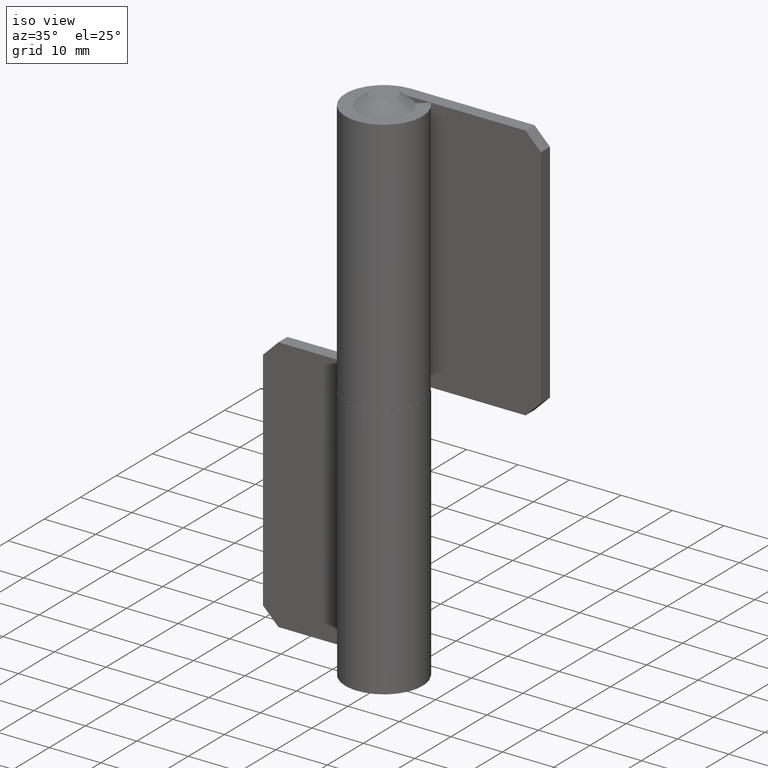
[diagram: clean part render]
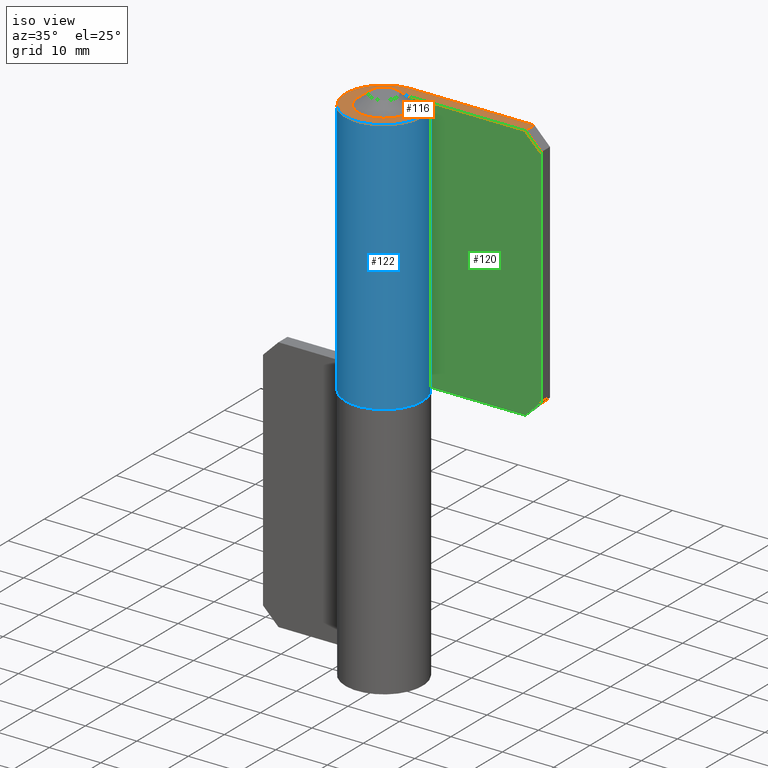
[diagram: same view with three faces highlighted in distinct colors, each labeled with its STEP entity id]
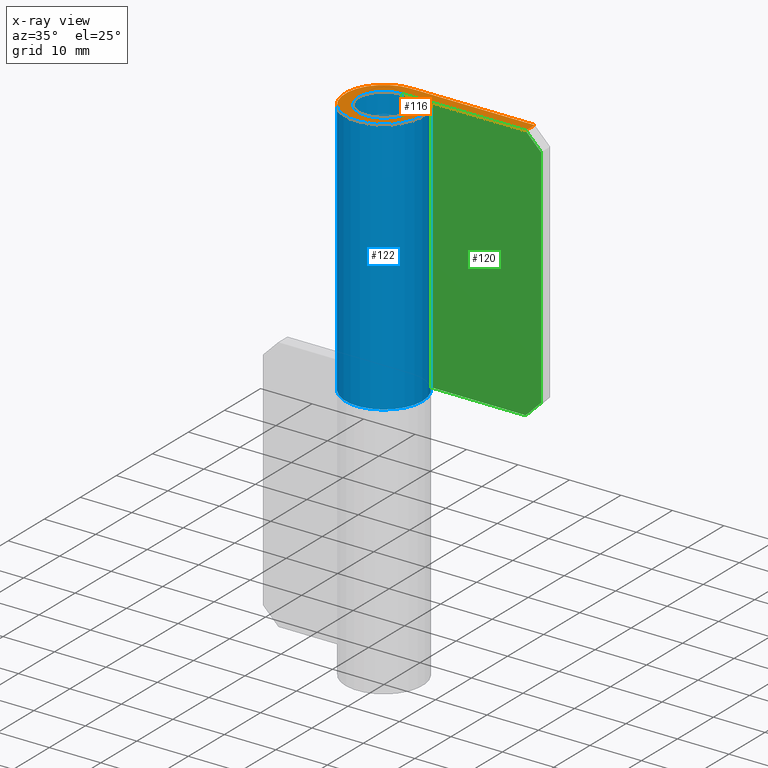
[diagram: x-ray of the same camera — body ghosted, the three highlighted faces saturated]
A machine part, iso view with three faces highlighted in distinct colors.
The next image is the same camera in x-ray (body ghosted, the three faces saturated) — at least one of them is partly hidden behind the body in this view.
Their STEP definitions:

[orange] entity #116 — the highlighted planar face has unit normal (0, 0, 1).
#116=ADVANCED_FACE('',(#180),#179,.T.);
#179=PLANE('',#432);
#180=FACE_OUTER_BOUND('',#433,.T.);
#429=CARTESIAN_POINT('',(-1.29468851000E+001,-1.29731095773E+001,5.00000000000E+001));
#430=DIRECTION('',(0.00000000000E+000,0.00000000000E+000,1.00000000000E+000));
#431=DIRECTION('',(1.00000000000E+000,0.00000000000E+000,-0.00000000000E+000));
#432=AXIS2_PLACEMENT_3D('',#429,#430,#431);
#433=EDGE_LOOP('',(#580,#581,#582,#583,#584,#585,#586,#587));
#580=ORIENTED_EDGE('',*,*,#710,.F.);
#581=ORIENTED_EDGE('',*,*,#699,.T.);
#582=ORIENTED_EDGE('',*,*,#711,.F.);
#583=ORIENTED_EDGE('',*,*,#712,.T.);
#584=ORIENTED_EDGE('',*,*,#713,.F.);
#585=ORIENTED_EDGE('',*,*,#714,.F.);
#586=ORIENTED_EDGE('',*,*,#715,.F.);
#587=ORIENTED_EDGE('',*,*,#716,.F.);
#699=EDGE_CURVE('',#771,#763,#772,.T.);
#710=EDGE_CURVE('',#771,#847,#848,.T.);
#711=EDGE_CURVE('',#854,#763,#855,.T.);
#712=EDGE_CURVE('',#854,#861,#862,.T.);
#713=EDGE_CURVE('',#868,#861,#869,.T.);
#714=EDGE_CURVE('',#875,#868,#876,.T.);
#715=EDGE_CURVE('',#882,#875,#883,.T.);
#716=EDGE_CURVE('',#847,#882,#889,.T.);
#763=VERTEX_POINT('',#1195);
#771=VERTEX_POINT('',#1200);
#772=LINE('',#1201,#1202);
#847=VERTEX_POINT('',#1247);
#848=LINE('',#1248,#1249);
#854=VERTEX_POINT('',#1251);
#855=LINE('',#1252,#1253);
#861=VERTEX_POINT('',#1255);
#862=CIRCLE('',#1259,7.50000000000E+000);
#868=VERTEX_POINT('',#1260);
#869=LINE('',#1261,#1262);
#875=VERTEX_POINT('',#1264);
#876=CIRCLE('',#1268,5.00000000000E+000);
#882=VERTEX_POINT('',#1269);
#883=CIRCLE('',#1273,5.00000000000E+000);
#889=CIRCLE('',#1277,5.00000000000E+000);
#1195=CARTESIAN_POINT('',(2.40000000000E+001,7.50000000000E+000,5.00000000000E+001));
#1200=CARTESIAN_POINT('',(2.40000000000E+001,5.00000000000E+000,5.00000000000E+001));
#1201=CARTESIAN_POINT('',(2.40000000000E+001,5.00000000000E+000,5.00000000000E+001));
#1202=VECTOR('',#1203,2.50000000000E+000);
#1203=DIRECTION('',(0.00000000000E+000,1.00000000000E+000,0.00000000000E+000));
#1247=CARTESIAN_POINT('',(-6.84226338139E-015,5.00000000000E+000,5.00000000000E+001));
#1248=CARTESIAN_POINT('',(2.40000000000E+001,5.00000000000E+000,5.00000000000E+001));
#1249=VECTOR('',#1250,2.40000000000E+001);
#1250=DIRECTION('',(-1.00000000000E+000,-4.21884749358E-015,0.00000000000E+000));
#1251=CARTESIAN_POINT('',(1.28331270662E-014,7.50000000000E+000,5.00000000000E+001));
#1252=CARTESIAN_POINT('',(1.28331270662E-014,7.50000000000E+000,5.00000000000E+001));
#1253=VECTOR('',#1254,2.40000000000E+001);
#1254=DIRECTION('',(1.00000000000E+000,4.21884749358E-015,0.00000000000E+000));
#1255=CARTESIAN_POINT('',(5.59104252323E+000,4.99902425514E+000,5.00000000000E+001));
#1256=CARTESIAN_POINT('',(1.42108547152E-014,0.00000000000E+000,5.00000000000E+001));
#1257=DIRECTION('',(0.00000000000E+000,0.00000000000E+000,1.00000000000E+000));
#1258=DIRECTION('',(1.83690953073E-016,1.00000000000E+000,-0.00000000000E+000));
#1259=AXIS2_PLACEMENT_3D('',#1256,#1257,#1258);
#1260=CARTESIAN_POINT('',(3.72736168215E+000,3.33268283676E+000,5.00000000000E+001));
#1261=CARTESIAN_POINT('',(3.72736168215E+000,3.33268283676E+000,5.00000000000E+001));
#1262=VECTOR('',#1263,2.50000000000E+000);
#1263=DIRECTION('',(7.45472336430E-001,6.66536567352E-001,0.00000000000E+000));
#1264=CARTESIAN_POINT('',(5.00000000000E+000,-1.95942401143E-008,5.00000000000E+001));
#1265=CARTESIAN_POINT('',(1.42108547152E-014,0.00000000000E+000,5.00000000000E+001));
#1266=DIRECTION('',(0.00000000000E+000,0.00000000000E+000,1.00000000000E+000));
#1267=DIRECTION('',(-4.25720114543E-015,1.00000000000E+000,0.00000000000E+000));
#1268=AXIS2_PLACEMENT_3D('',#1265,#1266,#1267);
#1269=CARTESIAN_POINT('',(-4.99999997307E+000,-5.18931670675E-004,5.00000000000E+001));
#1270=CARTESIAN_POINT('',(1.42108547152E-014,0.00000000000E+000,5.00000000000E+001));
#1271=DIRECTION('',(0.00000000000E+000,0.00000000000E+000,1.00000000000E+000));
#1272=DIRECTION('',(-4.25720114543E-015,1.00000000000E+000,0.00000000000E+000));
#1273=AXIS2_PLACEMENT_3D('',#1270,#1271,#1272);
#1274=CARTESIAN_POINT('',(1.42108547152E-014,0.00000000000E+000,5.00000000000E+001));
#1275=DIRECTION('',(0.00000000000E+000,0.00000000000E+000,1.00000000000E+000));
#1276=DIRECTION('',(-4.25720114543E-015,1.00000000000E+000,0.00000000000E+000));
#1277=AXIS2_PLACEMENT_3D('',#1274,#1275,#1276);

[blue] entity #122 — the highlighted cylindrical surface (partial cylindrical patch) has radius 7.5 mm, axis along (0, 0, -1).
#122=ADVANCED_FACE('',(#240),#239,.T.);
#239=CYLINDRICAL_SURFACE('',#462,7.50000000000E+000);
#240=FACE_OUTER_BOUND('',#463,.T.);
#459=CARTESIAN_POINT('',(1.42108547152E-014,0.00000000000E+000,-9.50000000000E+002));
#460=DIRECTION('',(-0.00000000000E+000,0.00000000000E+000,-1.00000000000E+000));
#461=DIRECTION('',(4.06736643076E-001,9.13545457643E-001,0.00000000000E+000));
#462=AXIS2_PLACEMENT_3D('',#459,#460,#461);
#463=EDGE_LOOP('',(#616,#617,#618,#619));
#616=ORIENTED_EDGE('',*,*,#712,.F.);
#617=ORIENTED_EDGE('',*,*,#725,.F.);
#618=ORIENTED_EDGE('',*,*,#723,.T.);
#619=ORIENTED_EDGE('',*,*,#728,.T.);
#712=EDGE_CURVE('',#854,#861,#862,.T.);
#723=EDGE_CURVE('',#895,#930,#937,.T.);
#725=EDGE_CURVE('',#895,#854,#949,.T.);
#728=EDGE_CURVE('',#930,#861,#967,.T.);
#854=VERTEX_POINT('',#1251);
#861=VERTEX_POINT('',#1255);
#862=CIRCLE('',#1259,7.50000000000E+000);
#895=VERTEX_POINT('',#1278);
#930=VERTEX_POINT('',#1301);
#937=CIRCLE('',#1308,7.50000000000E+000);
#949=LINE('',#1312,#1313);
#967=LINE('',#1321,#1322);
#1251=CARTESIAN_POINT('',(1.28331270662E-014,7.50000000000E+000,5.00000000000E+001));
#1255=CARTESIAN_POINT('',(5.59104252323E+000,4.99902425514E+000,5.00000000000E+001));
#1256=CARTESIAN_POINT('',(1.42108547152E-014,0.00000000000E+000,5.00000000000E+001));
#1257=DIRECTION('',(0.00000000000E+000,0.00000000000E+000,1.00000000000E+000));
#1258=DIRECTION('',(1.83690953073E-016,1.00000000000E+000,-0.00000000000E+000));
#1259=AXIS2_PLACEMENT_3D('',#1256,#1257,#1258);
#1278=CARTESIAN_POINT('',(1.28331270662E-014,7.50000000000E+000,0.00000000000E+000));
#1301=CARTESIAN_POINT('',(5.59104252323E+000,4.99902425514E+000,0.00000000000E+000));
#1305=CARTESIAN_POINT('',(1.42108547152E-014,0.00000000000E+000,0.00000000000E+000));
#1306=DIRECTION('',(0.00000000000E+000,0.00000000000E+000,1.00000000000E+000));
#1307=DIRECTION('',(1.83690953073E-016,1.00000000000E+000,-0.00000000000E+000));
#1308=AXIS2_PLACEMENT_3D('',#1305,#1306,#1307);
#1312=CARTESIAN_POINT('',(1.28331270662E-014,7.50000000000E+000,0.00000000000E+000));
#1313=VECTOR('',#1314,5.00000000000E+001);
#1314=DIRECTION('',(0.00000000000E+000,0.00000000000E+000,1.00000000000E+000));
#1321=CARTESIAN_POINT('',(5.59104252323E+000,4.99902425514E+000,0.00000000000E+000));
#1322=VECTOR('',#1323,5.00000000000E+001);
#1323=DIRECTION('',(0.00000000000E+000,0.00000000000E+000,1.00000000000E+000));

[green] entity #120 — the highlighted planar face has unit normal (-0, 1, 0).
#120=ADVANCED_FACE('',(#220),#219,.F.);
#219=PLANE('',#452);
#220=FACE_OUTER_BOUND('',#453,.T.);
#449=CARTESIAN_POINT('',(2.97000000000E+001,5.00000000000E+000,-5.00000000000E+000));
#450=DIRECTION('',(-4.20831065468E-015,1.00000000000E+000,0.00000000000E+000));
#451=DIRECTION('',(-1.00000000000E+000,-4.20831065468E-015,0.00000000000E+000));
#452=AXIS2_PLACEMENT_3D('',#449,#450,#451);
#453=EDGE_LOOP('',(#606,#607,#608,#609,#610,#611));
#606=ORIENTED_EDGE('',*,*,#718,.F.);
#607=ORIENTED_EDGE('',*,*,#704,.T.);
#608=ORIENTED_EDGE('',*,*,#726,.T.);
#609=ORIENTED_EDGE('',*,*,#700,.T.);
#610=ORIENTED_EDGE('',*,*,#710,.T.);
#611=ORIENTED_EDGE('',*,*,#727,.F.);
#700=EDGE_CURVE('',#778,#771,#779,.T.);
#704=EDGE_CURVE('',#806,#799,#807,.T.);
#710=EDGE_CURVE('',#771,#847,#848,.T.);
#718=EDGE_CURVE('',#806,#902,#903,.T.);
#726=EDGE_CURVE('',#799,#778,#955,.T.);
#727=EDGE_CURVE('',#902,#847,#961,.T.);
#771=VERTEX_POINT('',#1200);
#778=VERTEX_POINT('',#1204);
#779=LINE('',#1205,#1206);
#799=VERTEX_POINT('',#1216);
#806=VERTEX_POINT('',#1220);
#807=LINE('',#1221,#1222);
#847=VERTEX_POINT('',#1247);
#848=LINE('',#1248,#1249);
#902=VERTEX_POINT('',#1282);
#903=LINE('',#1283,#1284);
#955=LINE('',#1315,#1316);
#961=LINE('',#1318,#1319);
#1200=CARTESIAN_POINT('',(2.40000000000E+001,5.00000000000E+000,5.00000000000E+001));
#1204=CARTESIAN_POINT('',(2.70000000000E+001,5.00000000000E+000,4.70000000000E+001));
#1205=CARTESIAN_POINT('',(2.70000000000E+001,5.00000000000E+000,4.70000000000E+001));
#1206=VECTOR('',#1207,4.24264068712E+000);
#1207=DIRECTION('',(-7.07106781187E-001,-2.93083925621E-015,7.07106781187E-001));
#1216=CARTESIAN_POINT('',(2.70000000000E+001,5.00000000000E+000,3.00000000000E+000));
#1220=CARTESIAN_POINT('',(2.40000000000E+001,5.00000000000E+000,0.00000000000E+000));
#1221=CARTESIAN_POINT('',(2.40000000000E+001,5.00000000000E+000,-5.62178904251E-017));
#1222=VECTOR('',#1223,4.24264068712E+000);
#1223=DIRECTION('',(7.07106781187E-001,2.93083925621E-015,7.07106781187E-001));
#1247=CARTESIAN_POINT('',(-6.84226338139E-015,5.00000000000E+000,5.00000000000E+001));
#1248=CARTESIAN_POINT('',(2.40000000000E+001,5.00000000000E+000,5.00000000000E+001));
#1249=VECTOR('',#1250,2.40000000000E+001);
#1250=DIRECTION('',(-1.00000000000E+000,-4.21884749358E-015,0.00000000000E+000));
#1282=CARTESIAN_POINT('',(-6.83069855822E-015,5.00000000000E+000,0.00000000000E+000));
#1283=CARTESIAN_POINT('',(2.40000000000E+001,5.00000000000E+000,0.00000000000E+000));
#1284=VECTOR('',#1285,2.40000000000E+001);
#1285=DIRECTION('',(-1.00000000000E+000,-4.21884749358E-015,0.00000000000E+000));
#1315=CARTESIAN_POINT('',(2.70000000000E+001,5.00000000000E+000,3.00000000000E+000));
#1316=VECTOR('',#1317,4.40000000000E+001);
#1317=DIRECTION('',(0.00000000000E+000,0.00000000000E+000,1.00000000000E+000));
#1318=CARTESIAN_POINT('',(-6.84226338139E-015,5.00000000000E+000,0.00000000000E+000));
#1319=VECTOR('',#1320,5.00000000000E+001);
#1320=DIRECTION('',(0.00000000000E+000,0.00000000000E+000,1.00000000000E+000));